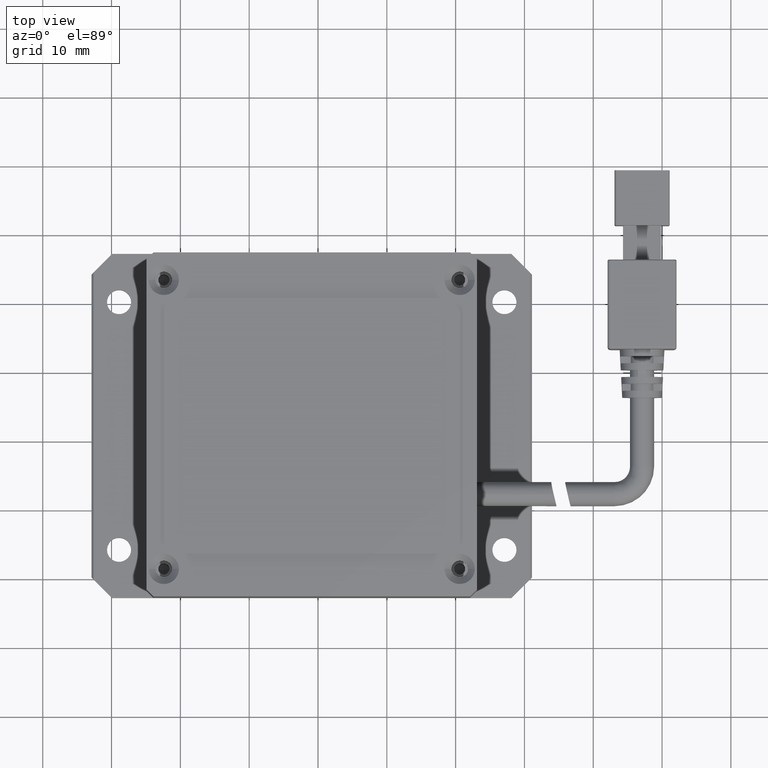
[diagram: clean part render]
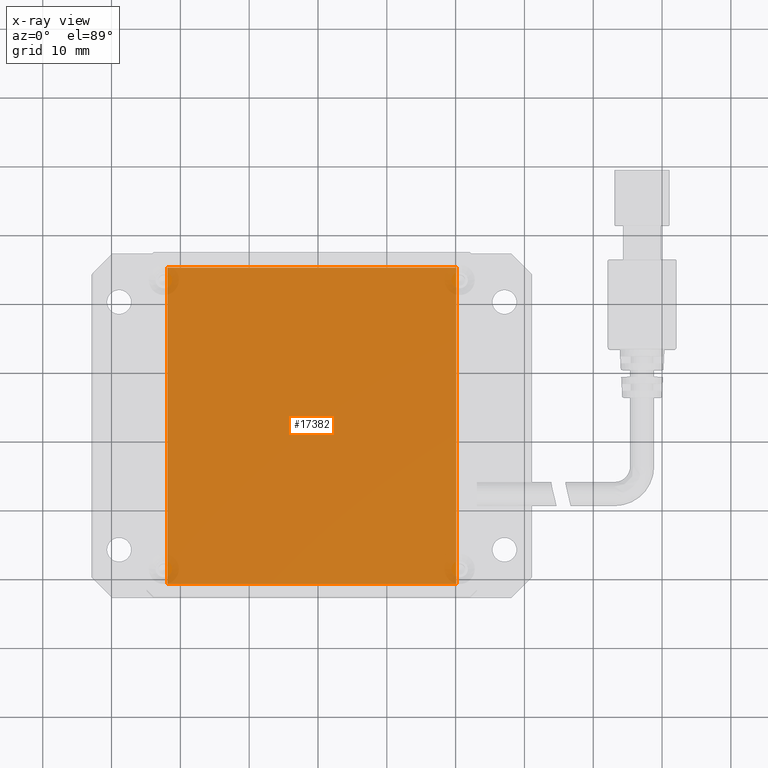
[diagram: x-ray — body ghosted, one internal face saturated and labeled with its STEP entity id]
A machine part, top view, then the same camera in x-ray: the body is ghosted and one INTERNAL B-rep face — a face not visible from any outside direction — is saturated and labeled: STEP entity #17382.
In plain terms, the highlighted planar face has unit normal (0, -0, 1).
Its self-contained STEP definition (entity closure, byte-faithful):
#240 = VECTOR ( 'NONE', #16975, 1000.000000000000000 ) ;
#254 = VERTEX_POINT ( 'NONE', #10031 ) ;
#752 = CARTESIAN_POINT ( 'NONE',  ( 20.09316533027873000, 25.29095074455903000, -1.630813539765796300E-011 ) ) ;
#1017 = AXIS2_PLACEMENT_3D ( 'NONE', #12637, #3139, #14219 ) ;
#1097 = EDGE_CURVE ( 'NONE', #20254, #254, #7322, .T. ) ;
#2037 = CARTESIAN_POINT ( 'NONE',  ( 20.09316533027873300, 25.29095074455903000, -1.630813539765796300E-011 ) ) ;
#2288 = FACE_OUTER_BOUND ( 'NONE', #9889, .T. ) ;
#2344 = DIRECTION ( 'NONE',  ( 1.000000000000000000, -0.0000000000000000000, -0.0000000000000000000 ) ) ;
#2886 = DIRECTION ( 'NONE',  ( -1.508455196501571900E-016, 1.000000000000000000, 0.0000000000000000000 ) ) ;
#3139 = DIRECTION ( 'NONE',  ( 0.0000000000000000000, -0.0000000000000000000, 1.000000000000000000 ) ) ;
#4216 = LINE ( 'NONE', #752, #16325 ) ;
#4273 = CARTESIAN_POINT ( 'NONE',  ( 20.09316533027873300, -20.70904925544096300, -1.630813539765796300E-011 ) ) ;
#5343 = LINE ( 'NONE', #17043, #17904 ) ;
#6455 = CARTESIAN_POINT ( 'NONE',  ( -21.90683466972126000, -20.70904925544096300, -1.630813539765796300E-011 ) ) ;
#7322 = LINE ( 'NONE', #9149, #15708 ) ;
#7436 = EDGE_CURVE ( 'NONE', #11793, #11405, #5343, .T. ) ;
#7982 = ORIENTED_EDGE ( 'NONE', *, *, #18355, .T. ) ;
#9149 = CARTESIAN_POINT ( 'NONE',  ( -21.90683466972126700, 25.29095074455903000, -1.630813539765796300E-011 ) ) ;
#9889 = EDGE_LOOP ( 'NONE', ( #11338, #18896, #13731, #7982 ) ) ;
#10031 = CARTESIAN_POINT ( 'NONE',  ( -21.90683466972126700, 25.29095074455903000, -1.630813539765796300E-011 ) ) ;
#11338 = ORIENTED_EDGE ( 'NONE', *, *, #1097, .T. ) ;
#11405 = VERTEX_POINT ( 'NONE', #11717 ) ;
#11717 = CARTESIAN_POINT ( 'NONE',  ( 20.09316533027873300, -20.70904925544096300, -1.630813539765796300E-011 ) ) ;
#11793 = VERTEX_POINT ( 'NONE', #2037 ) ;
#12637 = CARTESIAN_POINT ( 'NONE',  ( -0.9068346697212632500, 2.290950744559034900, -1.630813539765796300E-011 ) ) ;
#13731 = ORIENTED_EDGE ( 'NONE', *, *, #7436, .T. ) ;
#14219 = DIRECTION ( 'NONE',  ( 0.0000000000000000000, 1.000000000000000000, 0.0000000000000000000 ) ) ;
#15708 = VECTOR ( 'NONE', #2886, 1000.000000000000000 ) ;
#15747 = PLANE ( 'NONE',  #1017 ) ;
#16325 = VECTOR ( 'NONE', #2344, 1000.000000000000000 ) ;
#16975 = DIRECTION ( 'NONE',  ( -1.000000000000000000, 0.0000000000000000000, 0.0000000000000000000 ) ) ;
#17043 = CARTESIAN_POINT ( 'NONE',  ( 20.09316533027873000, 25.29095074455903000, -1.630813539765796300E-011 ) ) ;
#17092 = LINE ( 'NONE', #4273, #240 ) ;
#17382 = ADVANCED_FACE ( 'NONE', ( #2288 ), #15747, .F. ) ;
#17904 = VECTOR ( 'NONE', #20200, 1000.000000000000000 ) ;
#18355 = EDGE_CURVE ( 'NONE', #11405, #20254, #17092, .T. ) ;
#18795 = EDGE_CURVE ( 'NONE', #254, #11793, #4216, .T. ) ;
#18896 = ORIENTED_EDGE ( 'NONE', *, *, #18795, .T. ) ;
#20200 = DIRECTION ( 'NONE',  ( 7.542275982507859600E-017, -1.000000000000000000, 0.0000000000000000000 ) ) ;
#20254 = VERTEX_POINT ( 'NONE', #6455 ) ;